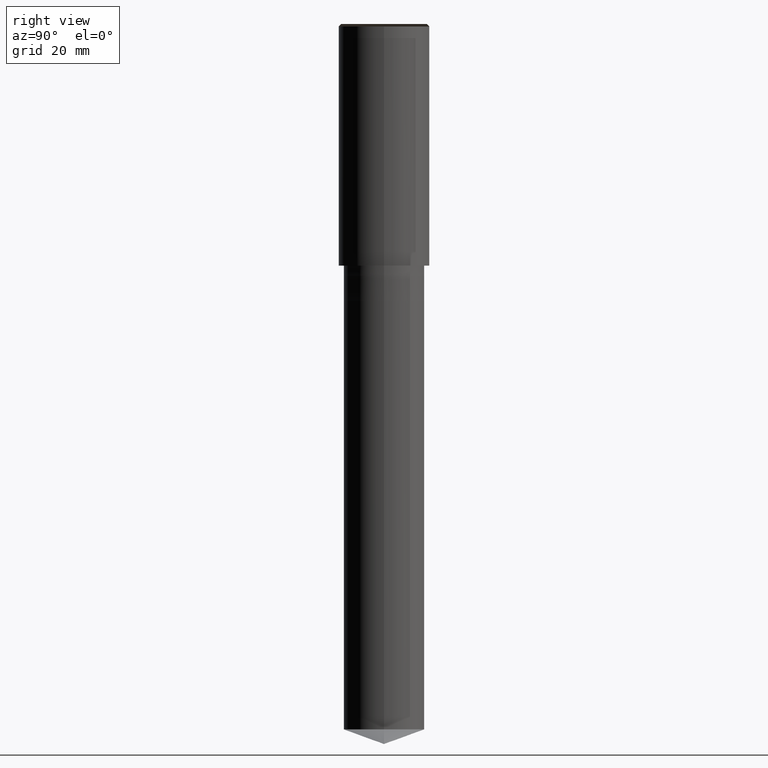
[diagram: clean part render]
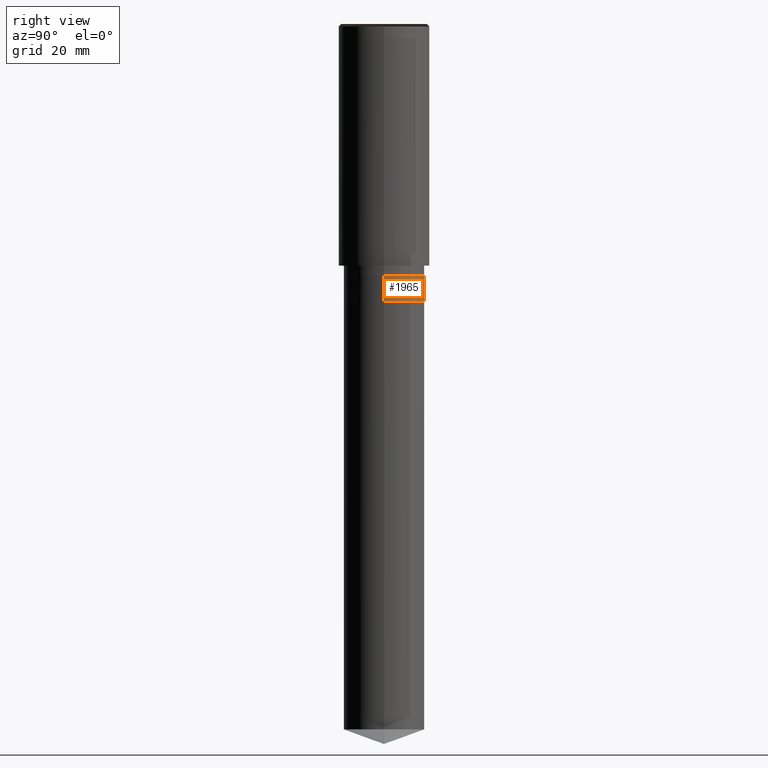
[diagram: same view with one face highlighted and labeled with its STEP entity id]
A machine part, right view. The second image highlights one B-rep face of the part: STEP entity #1965.
In plain terms, the highlighted face is a freeform B-spline surface patch.
Its self-contained STEP definition (entity closure, byte-faithful):
#1764=CARTESIAN_POINT('',(8.0,0.0,-7.0));
#1765=CARTESIAN_POINT('',(8.0,8.0,-7.0));
#1766=CARTESIAN_POINT('',(0.0,8.0,-7.0));
#1767=CARTESIAN_POINT('',(-8.0,8.0,-7.0));
#1768=CARTESIAN_POINT('',(-8.0,0.0,-7.0));
#1776=CARTESIAN_POINT('',(8.0,0.0,-2.0));
#1777=CARTESIAN_POINT('',(8.0,8.0,-2.0));
#1778=CARTESIAN_POINT('',(0.0,8.0,-2.0));
#1779=CARTESIAN_POINT('',(-8.0,8.0,-2.0));
#1780=CARTESIAN_POINT('',(-8.0,0.0,-2.0));
#1946=(
BOUNDED_SURFACE()
B_SPLINE_SURFACE(1,2,(
(#1764,#1765,#1766,#1767,#1768),
(#1776,#1777,#1778,#1779,#1780)
), .UNSPECIFIED.,.F.,.F.,.F.)
B_SPLINE_SURFACE_WITH_KNOTS((2,2),(3,2,3),(
0.0,1.0),(
0.0,0.5,1.0), .UNSPECIFIED.)
GEOMETRIC_REPRESENTATION_ITEM()
RATIONAL_B_SPLINE_SURFACE(((1.0,0.707106781187,1.0,0.707106781187,1.0),
(1.0,0.707106781187,1.0,0.707106781187,1.0)
))
REPRESENTATION_ITEM('')
SURFACE()
);
#1947=(
BOUNDED_CURVE()
B_SPLINE_CURVE(2,(#1768,#1767,#1766,#1765,#1764),.UNSPECIFIED.,.F.,.F.)
B_SPLINE_CURVE_WITH_KNOTS((3,2,3),
(0.0,0.5,1.0),.UNSPECIFIED.)
CURVE()
GEOMETRIC_REPRESENTATION_ITEM()
RATIONAL_B_SPLINE_CURVE((1.0,0.707106781187,1.0,0.707106781187,1.0))
REPRESENTATION_ITEM('')
);
#1948=(
BOUNDED_CURVE()
B_SPLINE_CURVE(1,(#1764,#1776),.UNSPECIFIED.,.F.,.F.)
B_SPLINE_CURVE_WITH_KNOTS((2,2),
(0.0,1.0),.UNSPECIFIED.)
CURVE()
GEOMETRIC_REPRESENTATION_ITEM()
RATIONAL_B_SPLINE_CURVE((1.0,1.0))
REPRESENTATION_ITEM('')
);
#1949=(
BOUNDED_CURVE()
B_SPLINE_CURVE(2,(#1776,#1777,#1778,#1779,#1780),.UNSPECIFIED.,.F.,.F.)
B_SPLINE_CURVE_WITH_KNOTS((3,2,3),
(0.0,0.5,1.0),.UNSPECIFIED.)
CURVE()
GEOMETRIC_REPRESENTATION_ITEM()
RATIONAL_B_SPLINE_CURVE((1.0,0.707106781187,1.0,0.707106781187,1.0))
REPRESENTATION_ITEM('')
);
#1950=(
BOUNDED_CURVE()
B_SPLINE_CURVE(1,(#1780,#1768),.UNSPECIFIED.,.F.,.F.)
B_SPLINE_CURVE_WITH_KNOTS((2,2),
(0.0,1.0),.UNSPECIFIED.)
CURVE()
GEOMETRIC_REPRESENTATION_ITEM()
RATIONAL_B_SPLINE_CURVE((1.0,1.0))
REPRESENTATION_ITEM('')
);
#1951=VERTEX_POINT('',#1764);
#1952=VERTEX_POINT('',#1768);
#1953=VERTEX_POINT('',#1776);
#1954=VERTEX_POINT('',#1780);
#1955=EDGE_CURVE('',#1952,#1951,#1947,.T.);
#1956=EDGE_CURVE('',#1951,#1953,#1948,.T.);
#1957=EDGE_CURVE('',#1953,#1954,#1949,.T.);
#1958=EDGE_CURVE('',#1954,#1952,#1950,.T.);
#1959=ORIENTED_EDGE('',*,*,#1955,.T.);
#1960=ORIENTED_EDGE('',*,*,#1956,.T.);
#1961=ORIENTED_EDGE('',*,*,#1957,.T.);
#1962=ORIENTED_EDGE('',*,*,#1958,.T.);
#1963=EDGE_LOOP('',(#1959,#1960,#1961,#1962));
#1964=FACE_OUTER_BOUND('',#1963,.T.);
#1965=ADVANCED_FACE('',(#1964),#1946,.T.);